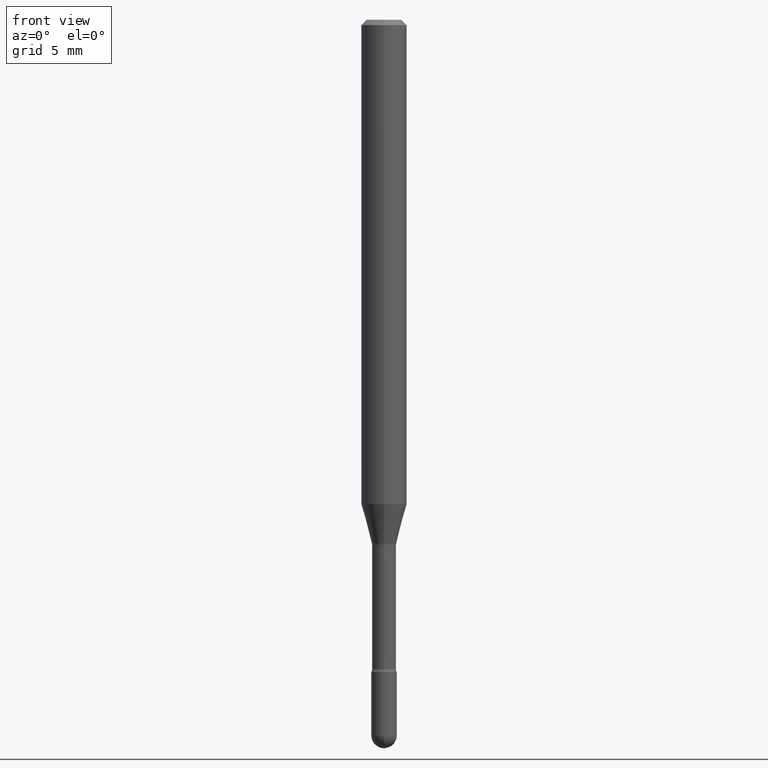
[diagram: clean part render]
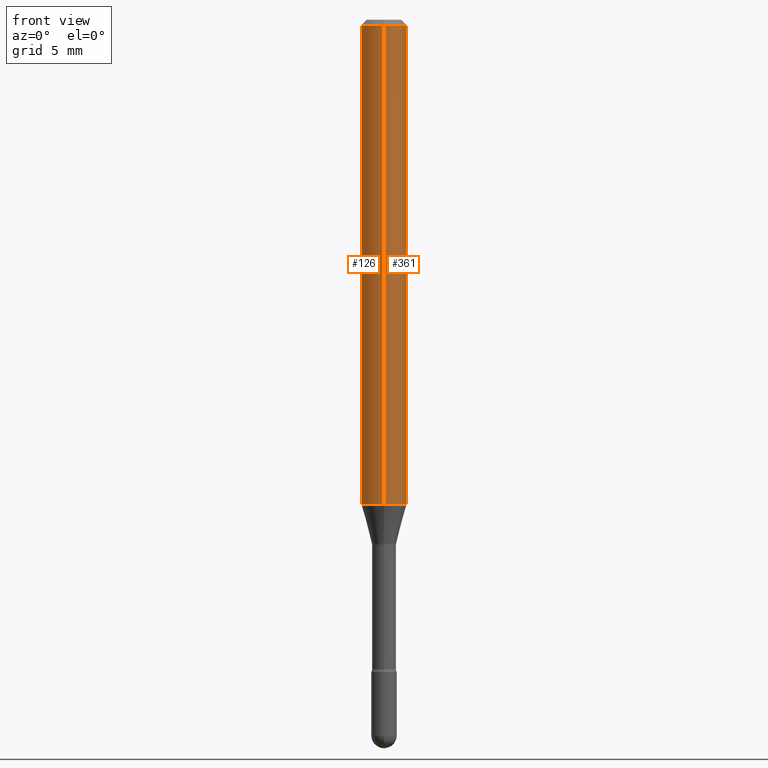
[diagram: same view with one multi-face feature highlighted, each face labeled with its STEP entity id]
A machine part, front view. The highlighted faces form ONE feature: a constant-radius fillet chain: 2 tangent blend faces with common blend radius 1.5875 mm. The faces share edges in the B-rep.
Their STEP definitions:
[1] entity #126 (Cylinder):
#60 = CARTESIAN_POINT ( 'NONE',  ( -4.364351673553592768E-16, -0.06250000000000467681, -1.329531296095961101 ) ) ;
#80 = CARTESIAN_POINT ( 'NONE',  ( 3.251365704841097934E-29, -4.641978728205103183E-15, -1.329531296095961546 ) ) ;
#90 = EDGE_CURVE ( 'NONE', #106, #130, #383, .T. ) ;
#106 = VERTEX_POINT ( 'NONE', #393 ) ;
#126 = ADVANCED_FACE ( 'NONE', ( #167 ), #175, .T. ) ;
#127 = CARTESIAN_POINT ( 'NONE',  ( -4.364351673553916201E-16, -0.06250000000000000000, 6.962883979399624318E-16 ) ) ;
#130 = VERTEX_POINT ( 'NONE', #212 ) ;
#131 = AXIS2_PLACEMENT_3D ( 'NONE', #200, #516, #149 ) ;
#132 = AXIS2_PLACEMENT_3D ( 'NONE', #80, #343, #146 ) ;
#141 = EDGE_CURVE ( 'NONE', #130, #443, #239, .T. ) ;
#146 = DIRECTION ( 'NONE',  ( -6.982962677686265922E-15, -1.000000000000000000, 4.370956789862821150E-15 ) ) ;
#149 = DIRECTION ( 'NONE',  ( -6.982962677686265922E-15, -1.000000000000000000, 3.491439984779462292E-15 ) ) ;
#154 = DIRECTION ( 'NONE',  ( -6.982962677686265922E-15, -1.000000000000000000, 3.483106191921935554E-15 ) ) ;
#160 = DIRECTION ( 'NONE',  ( -2.445497683573463397E-29, 3.491439984779462686E-15, 1.000000000000000000 ) ) ;
#161 = CARTESIAN_POINT ( 'NONE',  ( 3.668246525360215467E-31, -5.237159977169223045E-17, -0.01500000000000008271 ) ) ;
#167 = FACE_OUTER_BOUND ( 'NONE', #236, .T. ) ;
#175 = CYLINDRICAL_SURFACE ( 'NONE', #131, 0.06250000000000000000 ) ;
#200 = CARTESIAN_POINT ( 'NONE',  ( -1.169113584055446105E-44, 1.669184350826100908E-30, 4.780733988912460139E-16 ) ) ;
#212 = CARTESIAN_POINT ( 'NONE',  ( 4.440892098500952553E-16, 0.06249999999999993755, -0.01500000000000030129 ) ) ;
#228 = ORIENTED_EDGE ( 'NONE', *, *, #90, .F. ) ;
#236 = EDGE_LOOP ( 'NONE', ( #228, #339, #243, #379 ) ) ;
#239 = CIRCLE ( 'NONE', #418, 0.06250000000000000000 ) ;
#243 = ORIENTED_EDGE ( 'NONE', *, *, #333, .T. ) ;
#249 = DIRECTION ( 'NONE',  ( -2.445497683573463397E-29, 3.491439984779462686E-15, 1.000000000000000000 ) ) ;
#281 = CARTESIAN_POINT ( 'NONE',  ( -4.364351673553912750E-16, -0.06250000000000005551, -0.01499999999999986587 ) ) ;
#292 = CARTESIAN_POINT ( 'NONE',  ( 4.440892098500625669E-16, 0.06250000000000000000, 2.598583998425296453E-16 ) ) ;
#333 = EDGE_CURVE ( 'NONE', #484, #443, #447, .T. ) ;
#339 = ORIENTED_EDGE ( 'NONE', *, *, #537, .T. ) ;
#343 = DIRECTION ( 'NONE',  ( -2.445497683573463397E-29, 3.491439984779462686E-15, 1.000000000000000000 ) ) ;
#354 = DIRECTION ( 'NONE',  ( -2.445497683573463397E-29, 3.491439984779462686E-15, 1.000000000000000000 ) ) ;
#379 = ORIENTED_EDGE ( 'NONE', *, *, #141, .F. ) ;
#383 = LINE ( 'NONE', #292, #444 ) ;
#393 = CARTESIAN_POINT ( 'NONE',  ( 4.440892098500948609E-16, 0.06249999999999532319, -1.329531296095961768 ) ) ;
#408 = VECTOR ( 'NONE', #354, 39.37007874015748143 ) ;
#418 = AXIS2_PLACEMENT_3D ( 'NONE', #161, #249, #154 ) ;
#443 = VERTEX_POINT ( 'NONE', #281 ) ;
#444 = VECTOR ( 'NONE', #160, 39.37007874015748143 ) ;
#447 = LINE ( 'NONE', #127, #408 ) ;
#484 = VERTEX_POINT ( 'NONE', #60 ) ;
#516 = DIRECTION ( 'NONE',  ( -2.445497683573463397E-29, 3.491439984779462686E-15, 1.000000000000000000 ) ) ;
#524 = CIRCLE ( 'NONE', #132, 0.06250000000000000000 ) ;
#537 = EDGE_CURVE ( 'NONE', #106, #484, #524, .T. ) ;
[2] entity #361 (Cylinder):
#1 = CARTESIAN_POINT ( 'NONE',  ( -1.169113584055446105E-44, 1.669184350826100908E-30, 4.780733988912460139E-16 ) ) ;
#47 = AXIS2_PLACEMENT_3D ( 'NONE', #207, #202, #551 ) ;
#52 = DIRECTION ( 'NONE',  ( -2.445497683573463397E-29, 3.491439984779462686E-15, 1.000000000000000000 ) ) ;
#60 = CARTESIAN_POINT ( 'NONE',  ( -4.364351673553592768E-16, -0.06250000000000467681, -1.329531296095961101 ) ) ;
#84 = AXIS2_PLACEMENT_3D ( 'NONE', #1, #545, #182 ) ;
#86 = EDGE_CURVE ( 'NONE', #443, #130, #544, .T. ) ;
#90 = EDGE_CURVE ( 'NONE', #106, #130, #383, .T. ) ;
#106 = VERTEX_POINT ( 'NONE', #393 ) ;
#117 = EDGE_LOOP ( 'NONE', ( #331, #218, #246, #144 ) ) ;
#127 = CARTESIAN_POINT ( 'NONE',  ( -4.364351673553916201E-16, -0.06250000000000000000, 6.962883979399624318E-16 ) ) ;
#130 = VERTEX_POINT ( 'NONE', #212 ) ;
#144 = ORIENTED_EDGE ( 'NONE', *, *, #333, .F. ) ;
#160 = DIRECTION ( 'NONE',  ( -2.445497683573463397E-29, 3.491439984779462686E-15, 1.000000000000000000 ) ) ;
#182 = DIRECTION ( 'NONE',  ( -6.982962677686265922E-15, -1.000000000000000000, 3.491439984779462292E-15 ) ) ;
#185 = CARTESIAN_POINT ( 'NONE',  ( 3.251365704841097934E-29, -4.641978728205103183E-15, -1.329531296095961546 ) ) ;
#202 = DIRECTION ( 'NONE',  ( -2.445497683573463397E-29, 3.491439984779462686E-15, 1.000000000000000000 ) ) ;
#207 = CARTESIAN_POINT ( 'NONE',  ( 3.668246525360215467E-31, -5.237159977169223045E-17, -0.01500000000000008271 ) ) ;
#212 = CARTESIAN_POINT ( 'NONE',  ( 4.440892098500952553E-16, 0.06249999999999993755, -0.01500000000000030129 ) ) ;
#216 = FACE_OUTER_BOUND ( 'NONE', #117, .T. ) ;
#218 = ORIENTED_EDGE ( 'NONE', *, *, #90, .T. ) ;
#246 = ORIENTED_EDGE ( 'NONE', *, *, #86, .F. ) ;
#281 = CARTESIAN_POINT ( 'NONE',  ( -4.364351673553912750E-16, -0.06250000000000005551, -0.01499999999999986587 ) ) ;
#292 = CARTESIAN_POINT ( 'NONE',  ( 4.440892098500625669E-16, 0.06250000000000000000, 2.598583998425296453E-16 ) ) ;
#329 = AXIS2_PLACEMENT_3D ( 'NONE', #185, #52, #366 ) ;
#331 = ORIENTED_EDGE ( 'NONE', *, *, #472, .T. ) ;
#333 = EDGE_CURVE ( 'NONE', #484, #443, #447, .T. ) ;
#354 = DIRECTION ( 'NONE',  ( -2.445497683573463397E-29, 3.491439984779462686E-15, 1.000000000000000000 ) ) ;
#357 = CIRCLE ( 'NONE', #329, 0.06250000000000000000 ) ;
#361 = ADVANCED_FACE ( 'NONE', ( #216 ), #392, .T. ) ;
#366 = DIRECTION ( 'NONE',  ( -6.982962677686265922E-15, -1.000000000000000000, 4.370956789862821150E-15 ) ) ;
#383 = LINE ( 'NONE', #292, #444 ) ;
#392 = CYLINDRICAL_SURFACE ( 'NONE', #84, 0.06250000000000000000 ) ;
#393 = CARTESIAN_POINT ( 'NONE',  ( 4.440892098500948609E-16, 0.06249999999999532319, -1.329531296095961768 ) ) ;
#408 = VECTOR ( 'NONE', #354, 39.37007874015748143 ) ;
#443 = VERTEX_POINT ( 'NONE', #281 ) ;
#444 = VECTOR ( 'NONE', #160, 39.37007874015748143 ) ;
#447 = LINE ( 'NONE', #127, #408 ) ;
#472 = EDGE_CURVE ( 'NONE', #484, #106, #357, .T. ) ;
#484 = VERTEX_POINT ( 'NONE', #60 ) ;
#544 = CIRCLE ( 'NONE', #47, 0.06250000000000000000 ) ;
#545 = DIRECTION ( 'NONE',  ( -2.445497683573463397E-29, 3.491439984779462686E-15, 1.000000000000000000 ) ) ;
#551 = DIRECTION ( 'NONE',  ( -6.982962677686265922E-15, -1.000000000000000000, 3.483106191921935554E-15 ) ) ;